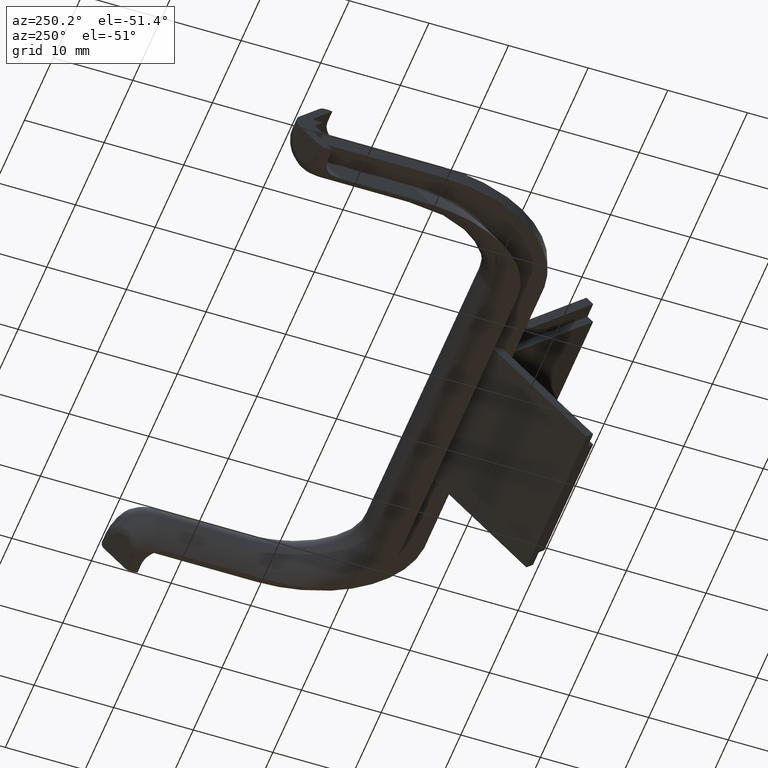
[diagram: clean part render]
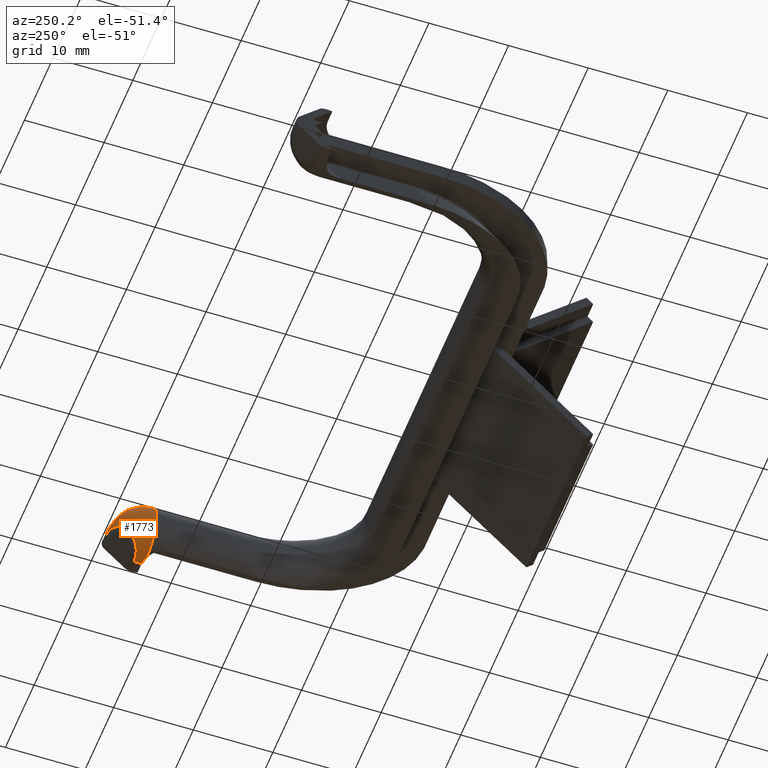
[diagram: same view with one face highlighted and labeled with its STEP entity id]
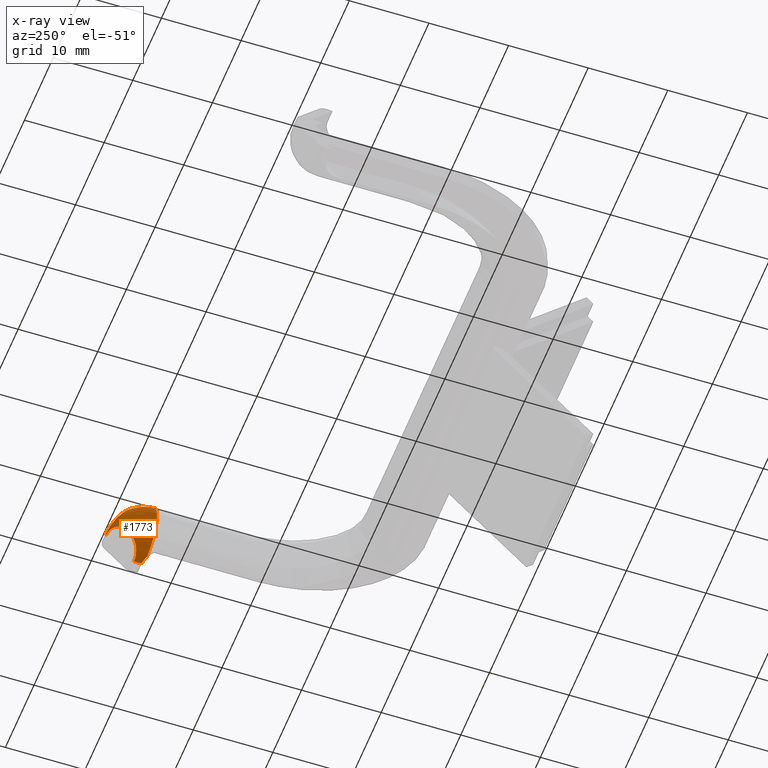
[diagram: x-ray of the same camera — body ghosted, the highlighted face saturated]
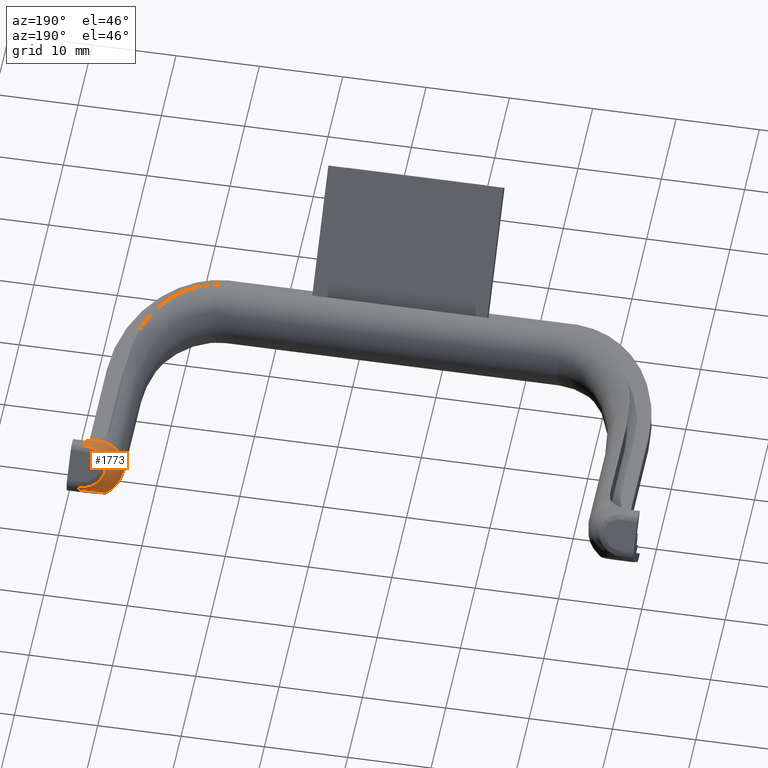
[diagram: same view with one face highlighted and labeled with its STEP entity id]
A machine part, auxiliary view. The second image highlights one B-rep face of the part: STEP entity #1773.
The next image is the same camera in x-ray: the body ghosted, the highlighted face saturated — about 0% of this face is hidden behind the body in this view.
A second angle (auxiliary view) of the same face is appended — the face is thin or edge-on in the first view.
In plain terms, the highlighted face is a freeform B-spline surface patch.
Its self-contained STEP definition (entity closure, byte-faithful):
#15=(
BOUNDED_SURFACE()
B_SPLINE_SURFACE(2,2,((#3317,#3318,#3319),(#3320,#3321,#3322),(#3323,#3324,
#3325),(#3326,#3327,#3328),(#3329,#3330,#3331),(#3332,#3333,#3334),(#3335,
#3336,#3337)),.UNSPECIFIED.,.F.,.F.,.F.)
B_SPLINE_SURFACE_WITH_KNOTS((3,2,2,3),(3,3),(-1.7851150207368,-0.595038340245617,
0.595038340245562,1.78511502073674),(-2.71089387100481E-13,1.57079632679492),
 .UNSPECIFIED.)
GEOMETRIC_REPRESENTATION_ITEM()
RATIONAL_B_SPLINE_SURFACE(((1.,0.707106781186443,1.),(0.828127008187614,
0.585574223173103,0.828127008187614),(1.,0.707106781186443,1.),(0.828127008187617,
0.585574223173105,0.828127008187617),(1.,0.707106781186443,1.),(0.828127008187612,
0.585574223173101,0.828127008187612),(1.,0.707106781186443,1.)))
REPRESENTATION_ITEM('')
SURFACE()
);
#19=B_SPLINE_CURVE_WITH_KNOTS('',3,(#3101,#3102,#3103,#3104,#3105,#3106),
 .UNSPECIFIED.,.F.,.F.,(4,2,4),(0.,0.0349905824511124,0.0475217741600681),
 .UNSPECIFIED.);
#21=B_SPLINE_CURVE_WITH_KNOTS('',3,(#3122,#3123,#3124,#3125,#3126,#3127),
 .UNSPECIFIED.,.F.,.F.,(4,2,4),(-0.0625066134151815,-0.0619951777981594,
0.),.UNSPECIFIED.);
#31=B_SPLINE_CURVE_WITH_KNOTS('',3,(#3294,#3295,#3296,#3297,#3298,#3299,
#3300,#3301),.UNSPECIFIED.,.F.,.F.,(4,1,1,1,1,4),(-0.649097569328712,-0.556369345138896,
-0.46364112094908,-0.370912896759264,-0.185456448379632,-2.93335585977104E-16),
 .UNSPECIFIED.);
#33=B_SPLINE_CURVE_WITH_KNOTS('',3,(#3342,#3343,#3344,#3345,#3346,#3347),
 .UNSPECIFIED.,.F.,.F.,(4,2,4),(-0.0827728334790266,-0.0458252502066579,
-0.0419362854081312),.UNSPECIFIED.);
#34=B_SPLINE_CURVE_WITH_KNOTS('',3,(#3349,#3350,#3351,#3352,#3353,#3354),
 .UNSPECIFIED.,.F.,.F.,(4,2,4),(0.99260247786033,1.00513366956928,1.0401242520204),
 .UNSPECIFIED.);
#35=B_SPLINE_CURVE_WITH_KNOTS('',3,(#3357,#3358,#3359,#3360,#3361,#3362,
#3363,#3364,#3365),.UNSPECIFIED.,.F.,.F.,(4,1,1,1,1,1,4),(-0.649089502328406,
-0.463635358806004,-0.370908287044803,-0.278181215283602,-0.185454143522402,
-0.0927270717612008,0.),.UNSPECIFIED.);
#180=FACE_OUTER_BOUND('',#284,.T.);
#284=EDGE_LOOP('',(#1404,#1405,#1406,#1407,#1408,#1409,#1410,#1411,#1412,
#1413));
#698=CIRCLE('',#1951,3.7);
#699=CIRCLE('',#1952,3.7);
#700=CIRCLE('',#1953,3.7);
#701=CIRCLE('',#1954,3.7);
#816=VERTEX_POINT('',#3098);
#817=VERTEX_POINT('',#3100);
#819=VERTEX_POINT('',#3111);
#833=VERTEX_POINT('',#3256);
#835=VERTEX_POINT('',#3292);
#836=VERTEX_POINT('',#3314);
#837=VERTEX_POINT('',#3339);
#838=VERTEX_POINT('',#3341);
#839=VERTEX_POINT('',#3348);
#840=VERTEX_POINT('',#3355);
#1014=EDGE_CURVE('',#817,#816,#19,.T.);
#1018=EDGE_CURVE('',#816,#819,#21,.T.);
#1042=EDGE_CURVE('',#835,#833,#31,.T.);
#1046=EDGE_CURVE('',#833,#836,#698,.T.);
#1048=EDGE_CURVE('',#817,#835,#699,.T.);
#1049=EDGE_CURVE('',#837,#819,#700,.T.);
#1050=EDGE_CURVE('',#837,#838,#33,.T.);
#1051=EDGE_CURVE('',#838,#839,#34,.T.);
#1052=EDGE_CURVE('',#840,#839,#701,.T.);
#1053=EDGE_CURVE('',#836,#840,#35,.T.);
#1404=ORIENTED_EDGE('',*,*,#1042,.F.);
#1405=ORIENTED_EDGE('',*,*,#1048,.F.);
#1406=ORIENTED_EDGE('',*,*,#1014,.T.);
#1407=ORIENTED_EDGE('',*,*,#1018,.T.);
#1408=ORIENTED_EDGE('',*,*,#1049,.F.);
#1409=ORIENTED_EDGE('',*,*,#1050,.T.);
#1410=ORIENTED_EDGE('',*,*,#1051,.T.);
#1411=ORIENTED_EDGE('',*,*,#1052,.F.);
#1412=ORIENTED_EDGE('',*,*,#1053,.F.);
#1413=ORIENTED_EDGE('',*,*,#1046,.F.);
#1773=ADVANCED_FACE('',(#180),#15,.T.);
#1951=AXIS2_PLACEMENT_3D('',#3315,#2294,#2295);
#1952=AXIS2_PLACEMENT_3D('',#3338,#2297,#2298);
#1953=AXIS2_PLACEMENT_3D('',#3340,#2299,#2300);
#1954=AXIS2_PLACEMENT_3D('',#3356,#2301,#2302);
#2294=DIRECTION('center_axis',(1.,3.62020654541158E-15,-4.0158711339748E-15));
#2295=DIRECTION('ref_axis',(4.84485265732291E-15,-0.270270270270257,0.962784493543619));
#2297=DIRECTION('center_axis',(1.,3.62020654541158E-15,-4.0158711339748E-15));
#2298=DIRECTION('ref_axis',(4.84485265732291E-15,-0.270270270270257,0.962784493543619));
#2299=DIRECTION('center_axis',(4.1543898746017E-15,-1.,-2.77555756156289E-16));
#2300=DIRECTION('ref_axis',(0.270270270270257,8.55581696095571E-16,0.962784493543619));
#2301=DIRECTION('center_axis',(1.,3.62020654541158E-15,-4.0158711339748E-15));
#2302=DIRECTION('ref_axis',(4.84485265732291E-15,-0.270270270270257,0.962784493543619));
#3098=CARTESIAN_POINT('',(66.,31.2717812190339,-3.66934427792044));
#3100=CARTESIAN_POINT('',(66.4999999999998,31.3257758642756,-3.61534963267869));
#3101=CARTESIAN_POINT('Ctrl Pts',(66.4999999999999,31.3257758642756,-3.61534963267869));
#3102=CARTESIAN_POINT('Ctrl Pts',(66.3833647251628,31.3257758642756,-3.61534963267869));
#3103=CARTESIAN_POINT('Ctrl Pts',(66.246683561709,31.3044719524143,-3.63665354453999));
#3104=CARTESIAN_POINT('Ctrl Pts',(66.0911560190297,31.283216164777,-3.65790933217729));
#3105=CARTESIAN_POINT('Ctrl Pts',(66.0451231014495,31.2771405682212,-3.66398492873306));
#3106=CARTESIAN_POINT('Ctrl Pts',(66.,31.2717812190339,-3.66934427792045));
#3111=CARTESIAN_POINT('',(65.401200061075,31.1126983722081,-3.69868065289076));
#3122=CARTESIAN_POINT('Ctrl Pts',(66.,31.2717812190339,-3.66934427792045));
#3123=CARTESIAN_POINT('Ctrl Pts',(65.9983324533826,31.2715831616238,-3.66954233533055));
#3124=CARTESIAN_POINT('Ctrl Pts',(65.9966625676058,31.2713827516944,-3.6697397958611));
#3125=CARTESIAN_POINT('Ctrl Pts',(65.7922886308595,31.2466001132523,-3.69379846775649));
#3126=CARTESIAN_POINT('Ctrl Pts',(65.5918698619123,31.1922191473997,-3.70377386488875));
#3127=CARTESIAN_POINT('Ctrl Pts',(65.4012000610749,31.1126983722079,-3.69868065289088));
#3256=CARTESIAN_POINT('',(66.4999999999998,35.8082982447939,-0.180392853918241));
#3292=CARTESIAN_POINT('',(66.4999999999998,32.2930912261263,-3.6955998725858));
#3294=CARTESIAN_POINT('Ctrl Pts',(66.4999999999998,32.2930912261263,-3.6955998725858));
#3295=CARTESIAN_POINT('Ctrl Pts',(66.1775890923004,32.2930912261263,-3.6955998725858));
#3296=CARTESIAN_POINT('Ctrl Pts',(65.4876012434704,32.3852603972035,-3.69920058462289));
#3297=CARTESIAN_POINT('Ctrl Pts',(64.289688206211,32.7932948107064,-3.34404950432455));
#3298=CARTESIAN_POINT('Ctrl Pts',(63.3676256135132,33.8819764869147,-2.2246549954977));
#3299=CARTESIAN_POINT('Ctrl Pts',(64.1066064553199,35.3918137098212,-0.631779378560156));
#3300=CARTESIAN_POINT('Ctrl Pts',(65.7147877047552,35.8082982447939,-0.180392853918229));
#3301=CARTESIAN_POINT('Ctrl Pts',(66.4999999999998,35.8082982447939,-0.180392853918224));
#3314=CARTESIAN_POINT('',(66.4999999999998,35.8082982447939,0.180392853918331));
#3315=CARTESIAN_POINT('Origin',(66.4999999999999,32.1126983722082,-1.2095795174054E-13));
#3317=CARTESIAN_POINT('Ctrl Pts',(66.2869225079325,31.1126983722082,-3.61534963267869));
#3318=CARTESIAN_POINT('Ctrl Pts',(66.2869225079325,31.3257758642756,-3.61534963267869));
#3319=CARTESIAN_POINT('Ctrl Pts',(66.4999999999999,31.3257758642756,-3.61534963267869));
#3320=CARTESIAN_POINT('Ctrl Pts',(63.8397738331065,31.1126983722082,-4.1479997407268));
#3321=CARTESIAN_POINT('Ctrl Pts',(63.8397738331061,33.772924539102,-4.1479997407268));
#3322=CARTESIAN_POINT('Ctrl Pts',(66.4999999999998,33.7729245391016,-4.14799974072681));
#3323=CARTESIAN_POINT('Ctrl Pts',(62.4359300697058,31.1126983722082,-2.07399987036351));
#3324=CARTESIAN_POINT('Ctrl Pts',(62.4359300697052,35.1767683025029,-2.07399987036351));
#3325=CARTESIAN_POINT('Ctrl Pts',(66.4999999999998,35.1767683025023,-2.07399987036353));
#3326=CARTESIAN_POINT('Ctrl Pts',(61.0320863063051,31.1126983722082,-2.24542606730438E-13));
#3327=CARTESIAN_POINT('Ctrl Pts',(61.0320863063042,36.5806120659038,-2.24542606730435E-13));
#3328=CARTESIAN_POINT('Ctrl Pts',(66.4999999999998,36.5806120659031,-2.44983392576162E-13));
#3329=CARTESIAN_POINT('Ctrl Pts',(62.4359300697057,31.1126983722082,2.07399987036313));
#3330=CARTESIAN_POINT('Ctrl Pts',(62.4359300697051,35.176768302503,2.07399987036313));
#3331=CARTESIAN_POINT('Ctrl Pts',(66.4999999999999,35.1767683025024,2.07399987036311));
#3332=CARTESIAN_POINT('Ctrl Pts',(63.8397738331063,31.1126983722082,4.14799974072648));
#3333=CARTESIAN_POINT('Ctrl Pts',(63.8397738331059,33.7729245391022,4.14799974072648));
#3334=CARTESIAN_POINT('Ctrl Pts',(66.4999999999999,33.7729245391018,4.14799974072647));
#3335=CARTESIAN_POINT('Ctrl Pts',(66.2869225079323,31.1126983722082,3.6153496326785));
#3336=CARTESIAN_POINT('Ctrl Pts',(66.2869225079323,31.3257758642758,3.6153496326785));
#3337=CARTESIAN_POINT('Ctrl Pts',(66.4999999999999,31.3257758642758,3.6153496326785));
#3338=CARTESIAN_POINT('Origin',(66.4999999999999,32.1126983722082,-1.2095795174054E-13));
#3339=CARTESIAN_POINT('',(65.401200061075,31.1126983722081,3.69868065289076));
#3340=CARTESIAN_POINT('Origin',(65.5,31.1126983722081,0.));
#3341=CARTESIAN_POINT('',(66.,31.2717812190341,3.66934427792022));
#3342=CARTESIAN_POINT('Ctrl Pts',(65.401200061075,31.1126983722082,3.69868065289064));
#3343=CARTESIAN_POINT('Ctrl Pts',(65.5752981106838,31.1853077303943,3.703331196769));
#3344=CARTESIAN_POINT('Ctrl Pts',(65.7576548045374,31.2369631513501,3.69550566777229));
#3345=CARTESIAN_POINT('Ctrl Pts',(65.9622191293566,31.2670334208778,3.67372168092089));
#3346=CARTESIAN_POINT('Ctrl Pts',(65.9813138725255,31.2695618351957,3.67156366175863));
#3347=CARTESIAN_POINT('Ctrl Pts',(66.,31.2717812190341,3.66934427792022));
#3348=CARTESIAN_POINT('',(66.4999999999999,31.3257758642758,3.6153496326785));
#3349=CARTESIAN_POINT('Ctrl Pts',(66.,31.2717812190341,3.66934427792022));
#3350=CARTESIAN_POINT('Ctrl Pts',(66.0451231014495,31.2771405682215,3.66398492873283));
#3351=CARTESIAN_POINT('Ctrl Pts',(66.0911560190297,31.2832161647772,3.65790933217707));
#3352=CARTESIAN_POINT('Ctrl Pts',(66.2466835617089,31.3044719524145,3.63665354453978));
#3353=CARTESIAN_POINT('Ctrl Pts',(66.3833647251628,31.3257758642758,3.6153496326785));
#3354=CARTESIAN_POINT('Ctrl Pts',(66.4999999999999,31.3257758642758,3.6153496326785));
#3355=CARTESIAN_POINT('',(66.4999999999999,32.2930912261267,3.69559987258554));
#3356=CARTESIAN_POINT('Origin',(66.4999999999999,32.1126983722082,-1.2095795174054E-13));
#3357=CARTESIAN_POINT('Ctrl Pts',(66.4999999999998,35.8082982447939,0.180392853918332));
#3358=CARTESIAN_POINT('Ctrl Pts',(65.7147974633923,35.8082982447939,0.180392853918337));
#3359=CARTESIAN_POINT('Ctrl Pts',(64.5218527383278,35.4840531070126,0.530887993188199));
#3360=CARTESIAN_POINT('Ctrl Pts',(63.659138432764,34.4951501937134,1.57838996146469));
#3361=CARTESIAN_POINT('Ctrl Pts',(63.6079684415284,33.6028981873063,2.51165310269547));
#3362=CARTESIAN_POINT('Ctrl Pts',(64.2894966634769,32.7942931557104,3.34256574991863));
#3363=CARTESIAN_POINT('Ctrl Pts',(65.4883100208861,32.383118913403,3.70130226038537));
#3364=CARTESIAN_POINT('Ctrl Pts',(66.1775930992308,32.2930912261266,3.69559987258554));
#3365=CARTESIAN_POINT('Ctrl Pts',(66.4999999999999,32.2930912261266,3.69559987258554));